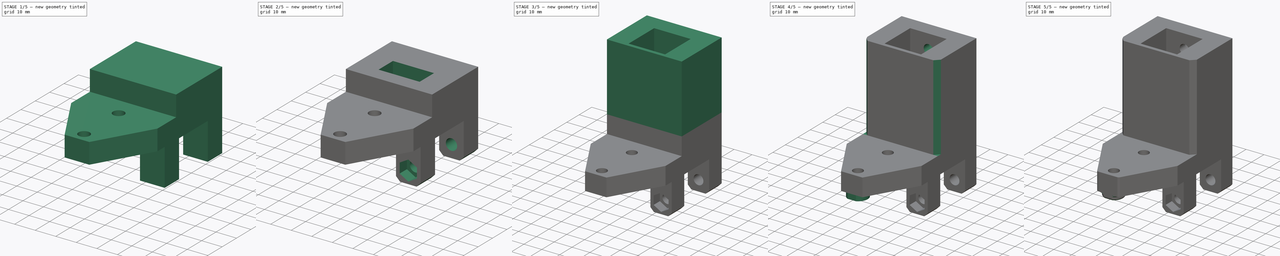
[diagram: build sequence overview — one tinted view per stage of 5, left to right]
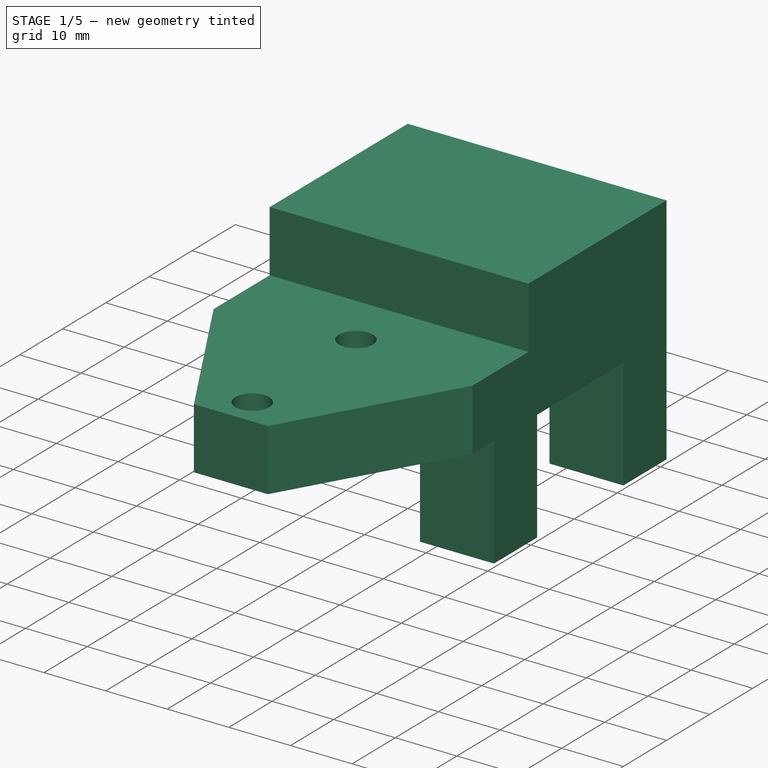
[diagram: stage 1 of 5 — iso view after this stage's code; geometry added in this stage tinted green]
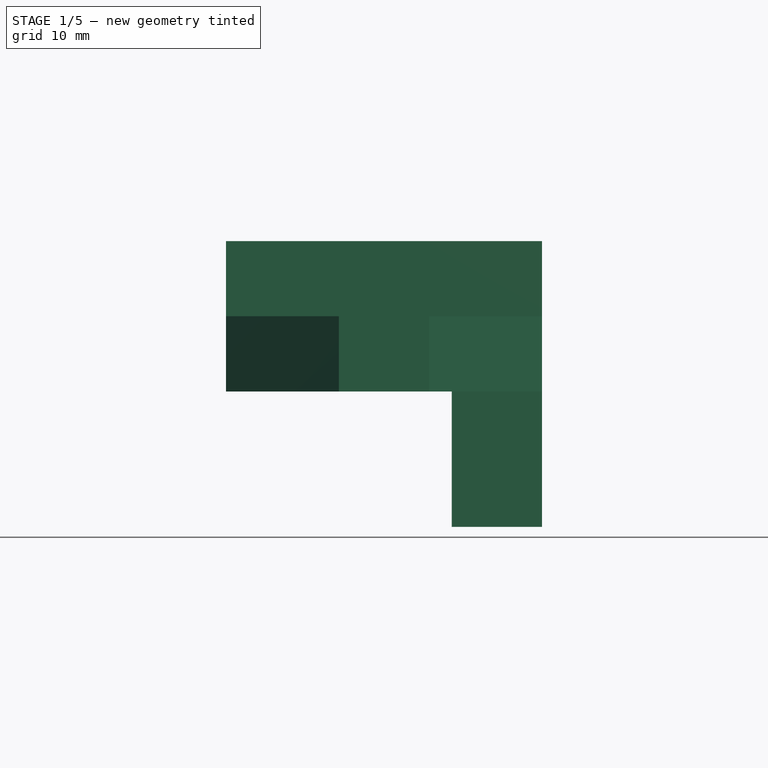
[diagram: stage 1 of 5 — front view after this stage's code; geometry added in this stage tinted green]
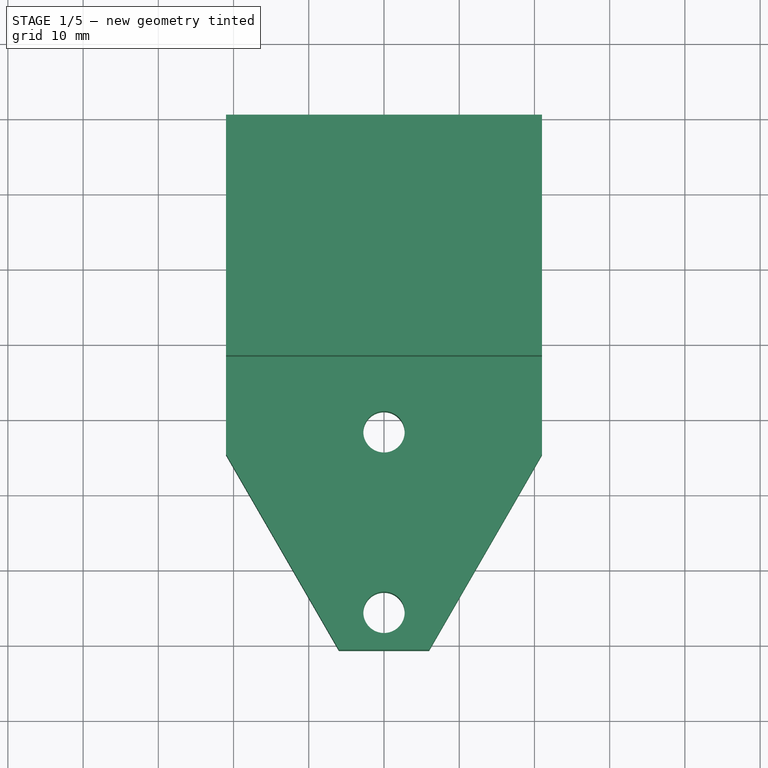
[diagram: stage 1 of 5 — top view after this stage's code; geometry added in this stage tinted green]
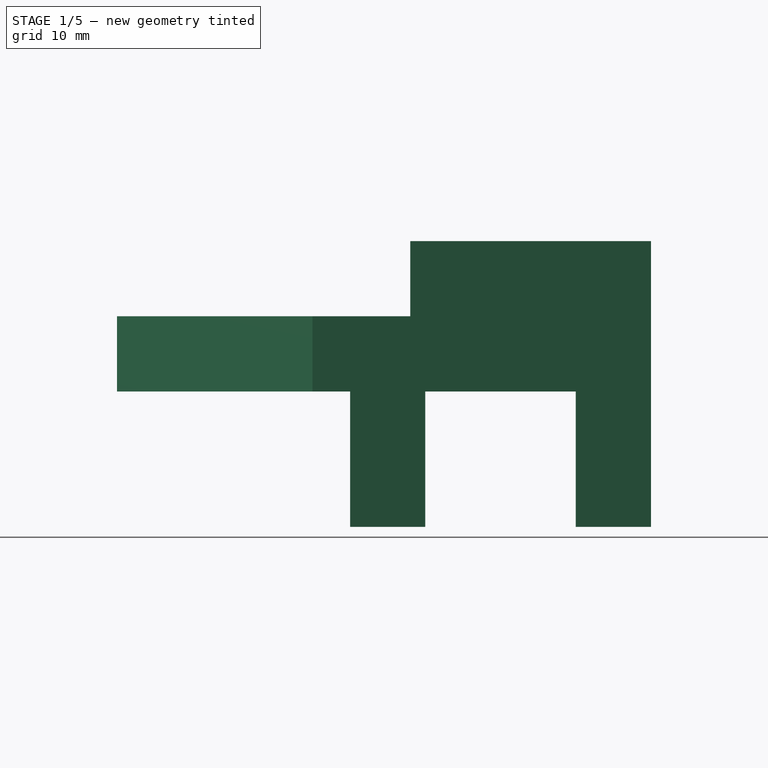
[diagram: stage 1 of 5 — right view after this stage's code; geometry added in this stage tinted green]
FCSTD DOCUMENT  (FreeCAD 0.19R24276 (Git))
Label: x-idler-mount
License: All rights reserved
LicenseURL: http://en.wikipedia.org/wiki/All_rights_reserved
objects: Sketcher::SketchObject×10, PartDesign::Pad×5, PartDesign::Pocket×4, PartDesign::Fillet×4, PartDesign::Plane×3, PartDesign::Chamfer×3, PartDesign::Hole×1, PartDesign::Body×1
note: 48 computed .brp shape members not serialized (recipe doc carries the construction recipe); baked Part::Feature solids carry a one-line shape summary decoded from their .brp

FEATURE [Sketcher::SketchObject] Sketch  label="Base"
  FullyConstrained = true
  MapMode = 5
  Support = -> [XY_Plane]
  sketch-geometry (8):
    g0: LineSegment StartX=-21 StartY=40 StartZ=0 EndX=21 EndY=40 EndZ=0
    g1: LineSegment StartX=21 StartY=40 StartZ=0 EndX=21 EndY=-5 EndZ=0
    g2: LineSegment StartX=-21 StartY=-5 StartZ=0 EndX=-21 EndY=40 EndZ=0
    g3: LineSegment StartX=-21 StartY=-5 StartZ=0 EndX=-6 EndY=-30.9808 EndZ=0
    g4: LineSegment StartX=6 StartY=-30.9808 StartZ=0 EndX=21 EndY=-5 EndZ=0
    g5: Circle CenterX=0 CenterY=-2 CenterZ=0 NormalX=0 NormalY=0 NormalZ=1 AngleXU=0 Radius=2.75
    g6: Circle CenterX=0 CenterY=-26 CenterZ=0 NormalX=0 NormalY=0 NormalZ=1 AngleXU=0 Radius=2.75
    g7: LineSegment StartX=-6 StartY=-30.9808 StartZ=0 EndX=6 EndY=-30.9808 EndZ=0
  constraints (22):
    c: Coincident(g0,g1)
    c: Coincident(g2,g0)
    c: Vertical(g1)
    c: Vertical(g2)
    c: DistanceX(g2,g1) = 42
    c: DistanceY(g2,g2) = 45
    c: Coincident(g3,g2)
    c: Coincident(g4,g1)
    c: PointOnObject(g5,g-2)
    c: PointOnObject(g6,g-2)
    c: Diameter(g5) = 5.5
    c: DistanceY(g6,g5) = 24
    c: DistanceY(g5,g-1) = 2
    c: Symmetric(g7,g7,g-2)
    c: Coincident(g7,g3)
    c: Coincident(g7,g4)
    c: Equal(g2,g1)
    c: DistanceY(g-1,g0) = 40
    c: Symmetric(g0,g0,g-2)
    c: DistanceX(g7,g7) = 12
    c: Angle(g3,g2) = 2.61799
    c: Equal(g6,g5)
FEATURE [PartDesign::Pad] Pad
  AllowMultiFace = false
  Direction = (0,0,1)
  Length = 10
  Length2 = 100
  Profile = -> Sketch
  Type = 0
FEATURE [Sketcher::SketchObject] Sketch001
  FullyConstrained = true
  MapMode = 5
  Support = -> [XY_Plane]
  sketch-geometry (9):
    g0: LineSegment StartX=9 StartY=0 StartZ=0 EndX=21 EndY=0 EndZ=0
    g1: LineSegment StartX=21 StartY=0 StartZ=0 EndX=21 EndY=10 EndZ=0
    g2: LineSegment StartX=21 StartY=10 StartZ=0 EndX=9 EndY=10 EndZ=0
    g3: LineSegment StartX=9 StartY=10 StartZ=0 EndX=9 EndY=0 EndZ=0
    g4: LineSegment StartX=9 StartY=30 StartZ=0 EndX=21 EndY=30 EndZ=0
    g5: LineSegment StartX=21 StartY=30 StartZ=0 EndX=21 EndY=40 EndZ=0
    g6: LineSegment StartX=21 StartY=40 StartZ=0 EndX=9 EndY=40 EndZ=0
    g7: LineSegment StartX=9 StartY=40 StartZ=0 EndX=9 EndY=30 EndZ=0
    g8: LineSegment StartX=15 StartY=0 StartZ=0 EndX=15 EndY=40 EndZ=0
  constraints (26):
    c: Coincident(g0,g1)
    c: Coincident(g1,g2)
    c: Coincident(g2,g3)
    c: Coincident(g3,g0)
    c: Horizontal(g0)
    c: Horizontal(g2)
    c: Vertical(g1)
    c: Vertical(g3)
    c: PointOnObject(g0,g-1)
    c: DistanceY(g1,g1) = 10
    c: DistanceX(g2,g2) = 12
    c: Coincident(g4,g5)
    c: Coincident(g5,g6)
    c: Coincident(g6,g7)
    c: Coincident(g7,g4)
    c: Horizontal(g6)
    c: Vertical(g5)
    c: Vertical(g7)
    c: DistanceX(g6,g6) = 12
    c: DistanceY(g-1,g6) = 40
    c: DistanceY(g5,g5) = 10
    c: PointOnObject(g8,g-1)
    c: DistanceY(g8,g8) = 40
    c: DistanceX(g-1,g8) = 15
    c: Symmetric(g0,g0,g8)
    c: Symmetric(g4,g4,g8)
FEATURE [Sketcher::SketchObject] Sketch002  label="BeltCutOut"
  FullyConstrained = true
  MapMode = 5
  Support = -> [XY_Plane]
  sketch-geometry (4):
    g0: LineSegment StartX=-10 StartY=15 StartZ=0 EndX=10 EndY=15 EndZ=0
    g1: LineSegment StartX=10 StartY=15 StartZ=0 EndX=10 EndY=25 EndZ=0
    g2: LineSegment StartX=10 StartY=25 StartZ=0 EndX=-10 EndY=25 EndZ=0
    g3: LineSegment StartX=-10 StartY=25 StartZ=0 EndX=-10 EndY=15 EndZ=0
  constraints (11):
    c: Coincident(g0,g1)
    c: Coincident(g1,g2)
    c: Coincident(g2,g3)
    c: Coincident(g3,g0)
    c: Horizontal(g2)
    c: Vertical(g1)
    c: Vertical(g3)
    c: DistanceX(g0,g0) = 20
    c: DistanceY(g1,g1) = 10
    c: Symmetric(g0,g0,g-2)
    c: DistanceY(g-1,g0) = 15
FEATURE [Sketcher::SketchObject] Sketch005  label="ArmCapturedNut"
  FullyConstrained = true
  MapMode = 5
  Placement = pos=(0,0,0) rot=(1,0,0;1.5708rad)
  Support = -> [XZ_Plane]
  sketch-geometry (7):
    g0: LineSegment StartX=19.2 StartY=-14.4249 StartZ=0 EndX=19.2 EndY=-9.57513 EndZ=0
    g1: LineSegment StartX=19.2 StartY=-9.57513 StartZ=0 EndX=15 EndY=-7.15026 EndZ=0
    g2: LineSegment StartX=15 StartY=-7.15026 StartZ=0 EndX=10.8 EndY=-9.57513 EndZ=0
    g3: LineSegment StartX=10.8 StartY=-9.57513 StartZ=0 EndX=10.8 EndY=-14.4249 EndZ=0
    g4: LineSegment StartX=10.8 StartY=-14.4249 StartZ=0 EndX=15 EndY=-16.8497 EndZ=0
    g5: LineSegment StartX=15 StartY=-16.8497 StartZ=0 EndX=19.2 EndY=-14.4249 EndZ=0
    g6: Circle CenterX=15 CenterY=-12 CenterZ=0 NormalX=0 NormalY=0 NormalZ=1 AngleXU=0 Radius=4.84974
  constraints (17):
    c: Coincident(g0,g1)
    c: Coincident(g1,g2)
    c: Coincident(g2,g3)
    c: Coincident(g3,g4)
    c: Coincident(g4,g5)
    c: Coincident(g5,g0)
    c: Equal(g0, g1-g5) x5
    c: PointOnObject(g0,g6)
    c: PointOnObject(g1,g6)
    c: PointOnObject(g2,g6)
    c: PointOnObject(g3,g6)
    c: PointOnObject(g4,g6)
    c: PointOnObject(g5,g6)
    c: DistanceY(g6,g-1) = 12
    c: Vertical(g3)
    c: DistanceX(g2,g0) = 8.4
    c: DistanceX(g-1,g6) = 15
FEATURE [Sketcher::SketchObject] Sketch006
  FullyConstrained = true
  MapMode = 5
  Support = -> [XY_Plane]
  sketch-geometry (1):
    g0: Circle CenterX=-15 CenterY=20 CenterZ=0 NormalX=0 NormalY=0 NormalZ=1 AngleXU=0 Radius=2.5
  constraints (3):
    c: DistanceX(g0,g-1) = 15
    c: Diameter(g0) = 5
    c: DistanceY(g-1,g0) = 20
FEATURE [Sketcher::SketchObject] Sketch007  label="railcutout"
  AttachmentOffset = pos=(0,0,20) rot=(0,0,1;0rad)
  FullyConstrained = true
  MapMode = 5
  Placement = pos=(0,0,20) rot=(0,0,1;0rad)
  Support = -> [XY_Plane]
  sketch-geometry (8):
    g0: LineSegment StartX=-10.25 StartY=10 StartZ=0 EndX=-10.25 EndY=30.5 EndZ=0
    g1: LineSegment StartX=-10.25 StartY=30.5 StartZ=0 EndX=10.25 EndY=30.5 EndZ=0
    g2: LineSegment StartX=10.25 StartY=30.5 StartZ=0 EndX=10.25 EndY=10 EndZ=0
    g3: LineSegment StartX=21 StartY=8 StartZ=0 EndX=21 EndY=40 EndZ=0
    g4: LineSegment StartX=21 StartY=40 StartZ=0 EndX=-21 EndY=40 EndZ=0
    g5: LineSegment StartX=-21 StartY=40 StartZ=0 EndX=-21 EndY=8 EndZ=0
    g6: LineSegment StartX=-21 StartY=8 StartZ=0 EndX=21 EndY=8 EndZ=0
    g7: LineSegment StartX=-10.25 StartY=10 StartZ=0 EndX=10.25 EndY=10 EndZ=0
  constraints (22):
    c: Vertical(g0)
    c: Coincident(g0,g1)
    c: Coincident(g1,g2)
    c: Vertical(g2)
    c: Vertical(g3)
    c: Coincident(g3,g4)
    c: Coincident(g4,g5)
    c: Vertical(g5)
    c: Horizontal(g6)
    c: Coincident(g7,g0)
    c: Coincident(g7,g2)
    c: DistanceY(g2,g2) = 20.5
    c: Horizontal(g7)
    c: DistanceX(g4,g4) = 42
    c: Symmetric(g4,g3,g-2)
    c: DistanceY(g1,g3) = 9.5
    c: DistanceY(g6,g3) = 32
    c: DistanceY(g-1,g3) = 40
    c: Symmetric(g0,g1,g-2)
    c: DistanceX(g1,g1) = 20.5
    c: Coincident(g6,g5)
    c: Coincident(g3,g6)
FEATURE [Sketcher::SketchObject] Sketch008
  AttachmentOffset = pos=(0,0,-40) rot=(0,0,1;0rad)
  FullyConstrained = true
  MapMode = 5
  Placement = pos=(0,40,8.9e-15) rot=(1,0,0;1.5708rad)
  Support = -> [XZ_Plane]
  sketch-geometry (2):
    g0: Circle CenterX=0 CenterY=50 CenterZ=0 NormalX=0 NormalY=0 NormalZ=1 AngleXU=0 Radius=2.75
    g1: Circle CenterX=0 CenterY=28 CenterZ=0 NormalX=0 NormalY=0 NormalZ=1 AngleXU=0 Radius=2.75
  constraints (6):
    c: PointOnObject(g0,g-2)
    c: PointOnObject(g1,g-2)
    c: Equal(g0,g1)
    c: Diameter(g0) = 5.5
    c: DistanceY(g1,g0) = 22
    c: DistanceY(g-1,g1) = 28
FEATURE [Sketcher::SketchObject] Sketch009
  AttachmentOffset = pos=(0,0,10) rot=(0,0,1;0rad)
  FullyConstrained = true
  MapMode = 5
  Placement = pos=(0,0,10) rot=(0,0,1;0rad)
  Support = -> [XY_Plane]
  sketch-geometry (4):
    g0: LineSegment StartX=-21 StartY=40 StartZ=0 EndX=21 EndY=40 EndZ=0
    g1: LineSegment StartX=21 StartY=40 StartZ=0 EndX=21 EndY=8 EndZ=0
    g2: LineSegment StartX=21 StartY=8 StartZ=0 EndX=-21 EndY=8 EndZ=0
    g3: LineSegment StartX=-21 StartY=8 StartZ=0 EndX=-21 EndY=40 EndZ=0
  constraints (11):
    c: Coincident(g0,g1)
    c: Coincident(g1,g2)
    c: Coincident(g2,g3)
    c: Coincident(g3,g0)
    c: Horizontal(g0)
    c: Vertical(g1)
    c: Vertical(g3)
    c: Symmetric(g2,g1,g-2)
    c: DistanceX(g2,g2) = 42
    c: DistanceY(g1,g1) = 32
    c: DistanceY(g-1,g0) = 40
FEATURE [PartDesign::Pad] Pad003
  BaseFeature = -> Pad
  Direction = (0,0,1)
  Length = 10
  Length2 = 100
  Profile = -> Sketch009
  Type = 0
FEATURE [PartDesign::Pad] Pad001
  AllowMultiFace = false
  BaseFeature = -> Pad003
  Direction = (0,0,1)
  Length = 18
  Length2 = 100
  Profile = -> Sketch001
  Reversed = true
  Type = 0
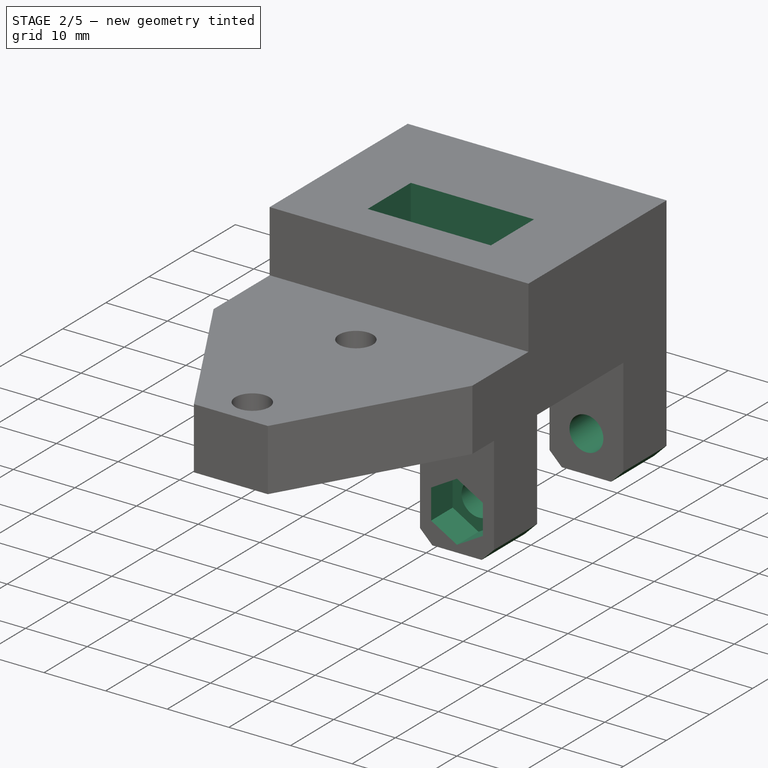
[diagram: stage 2 of 5 — iso view after this stage's code; geometry added in this stage tinted green]
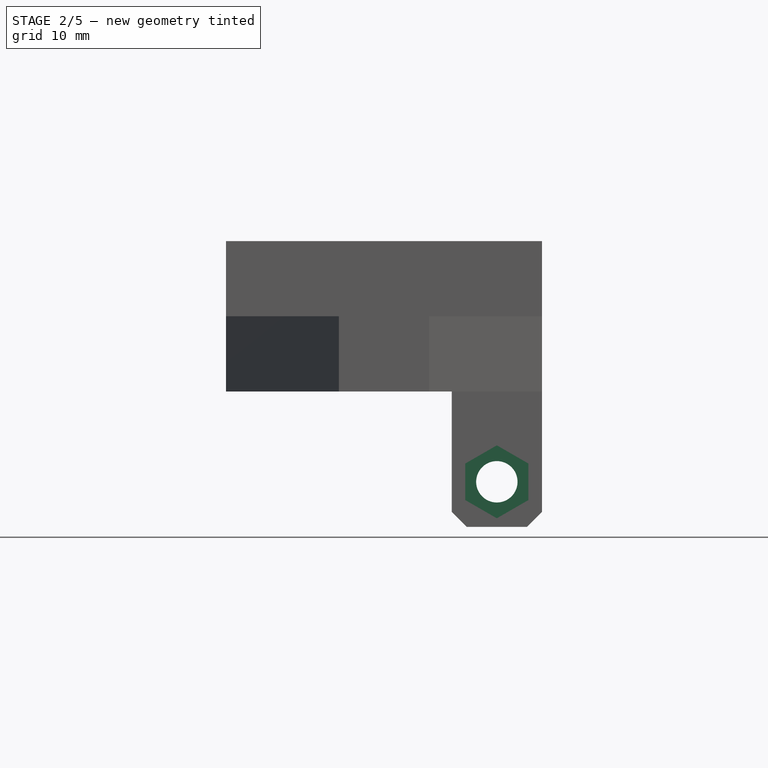
[diagram: stage 2 of 5 — front view after this stage's code; geometry added in this stage tinted green]
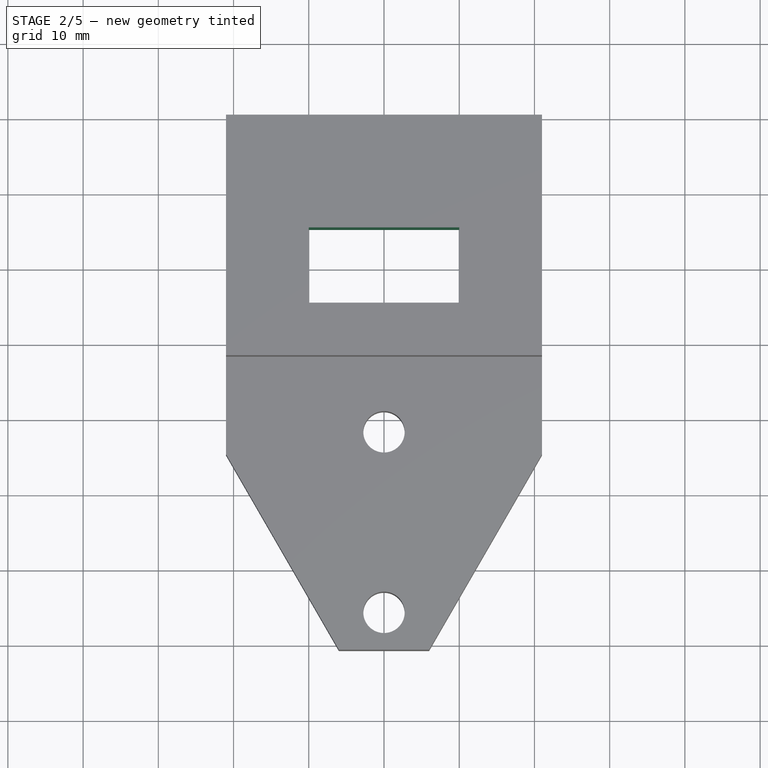
[diagram: stage 2 of 5 — top view after this stage's code; geometry added in this stage tinted green]
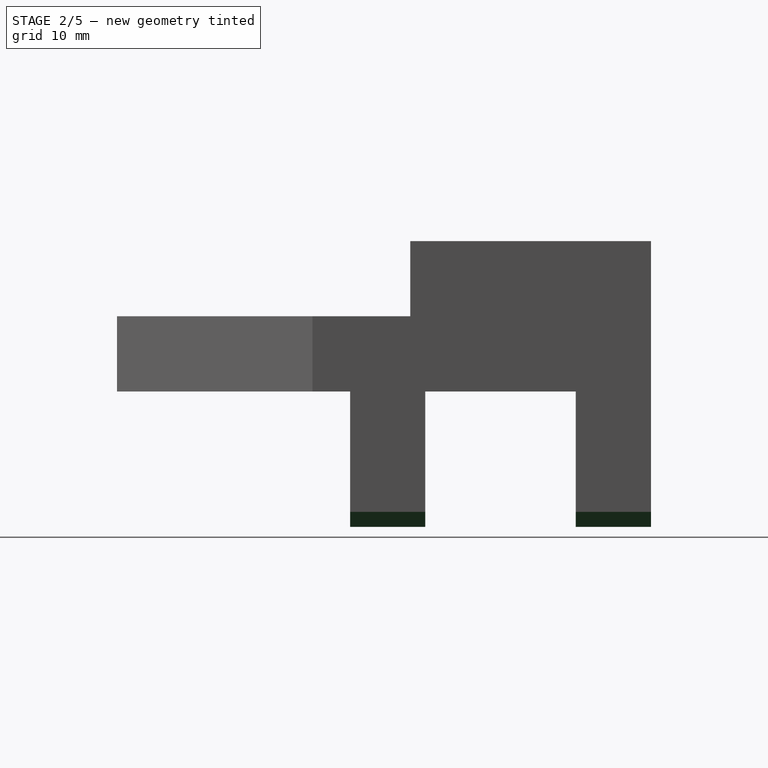
[diagram: stage 2 of 5 — right view after this stage's code; geometry added in this stage tinted green]
FEATURE [PartDesign::Pocket] Pocket
  AllowMultiFace = false
  BaseFeature = -> Pad001
  Length = 18
  Length2 = 20
  Profile = -> Sketch002
  Type = 4
FEATURE [PartDesign::Plane] DatumPlane
  Length = 62.8841
  MapMode = 5
  Placement = pos=(0,40,0) rot=(0,0.707107,0.707107;3.14159rad)
  ResizeMode = 0
  Support = -> [Pocket]
  Width = 95.8841
FEATURE [Sketcher::SketchObject] Sketch003  label="ArmBoltHole"
  FullyConstrained = true
  MapMode = 5
  Placement = pos=(0,40,0) rot=(0,0.707107,0.707107;3.14159rad)
  Support = -> [Pocket]
  sketch-geometry (1):
    g0: Circle CenterX=-15 CenterY=-12 CenterZ=0 NormalX=0 NormalY=0 NormalZ=1 AngleXU=0 Radius=2.75
  constraints (3):
    c: Diameter(g0) = 5.5
    c: DistanceY(g0,g-1) = 12
    c: DistanceX(g0,g-1) = 15
FEATURE [PartDesign::Pocket] Pocket001
  AllowMultiFace = false
  BaseFeature = -> Pocket
  Length = 40
  Length2 = 100
  Profile = -> Sketch003
  Type = 0
FEATURE [PartDesign::Pocket] Pocket003
  AllowMultiFace = false
  BaseFeature = -> Pocket001
  Length = 5
  Length2 = 100
  Profile = -> Sketch005
  Type = 0
FEATURE [PartDesign::Chamfer] Chamfer
  Angle = 45
  Base = -> Pocket003 [Edge49,Edge52,Edge70,Edge56]
  BaseFeature = -> Pocket003
  ChamferType = 0
  FlipDirection = false
  Size = 2
  Size2 = 1
  SupportTransform = false
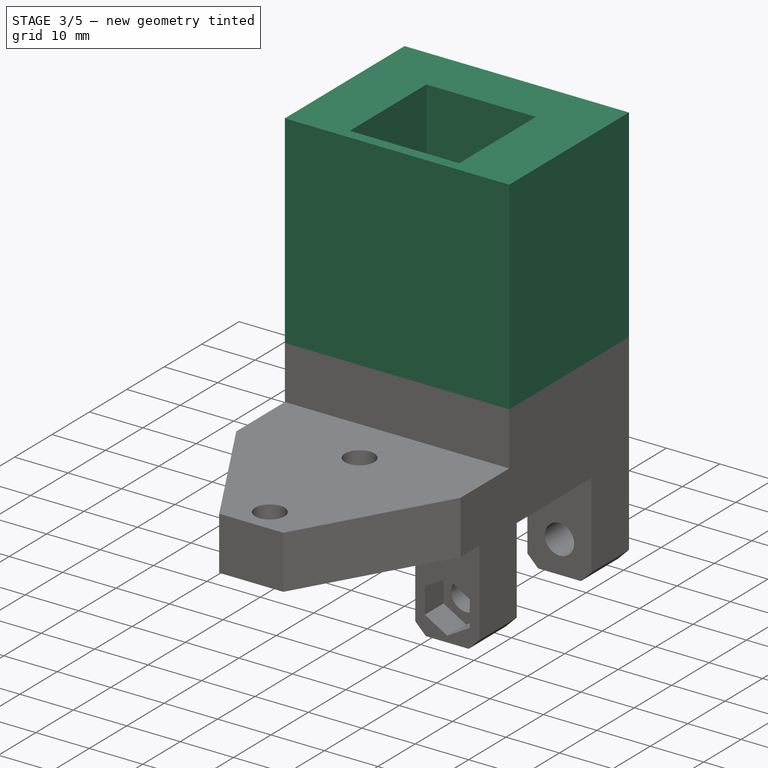
[diagram: stage 3 of 5 — iso view after this stage's code; geometry added in this stage tinted green]
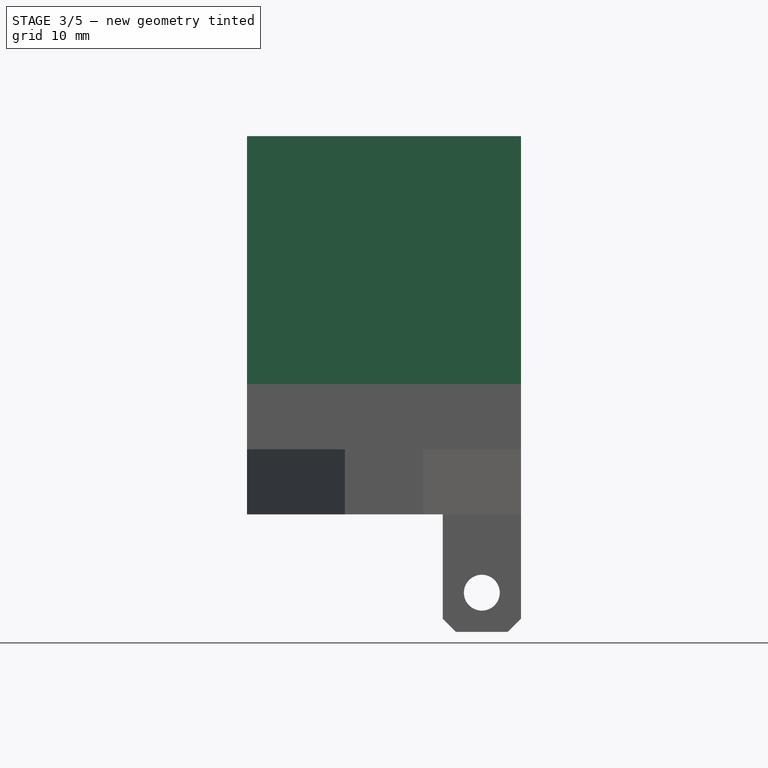
[diagram: stage 3 of 5 — front view after this stage's code; geometry added in this stage tinted green]
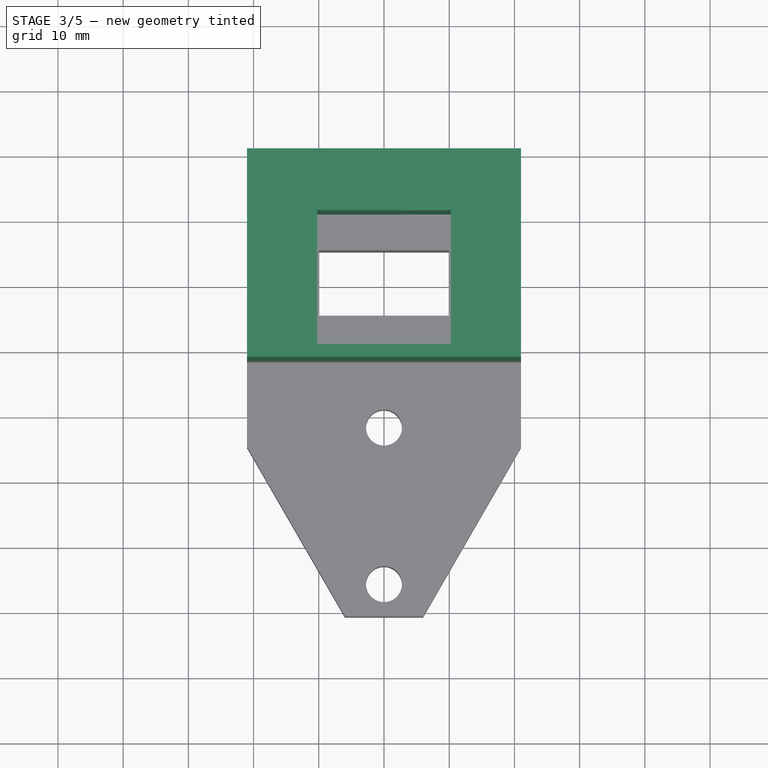
[diagram: stage 3 of 5 — top view after this stage's code; geometry added in this stage tinted green]
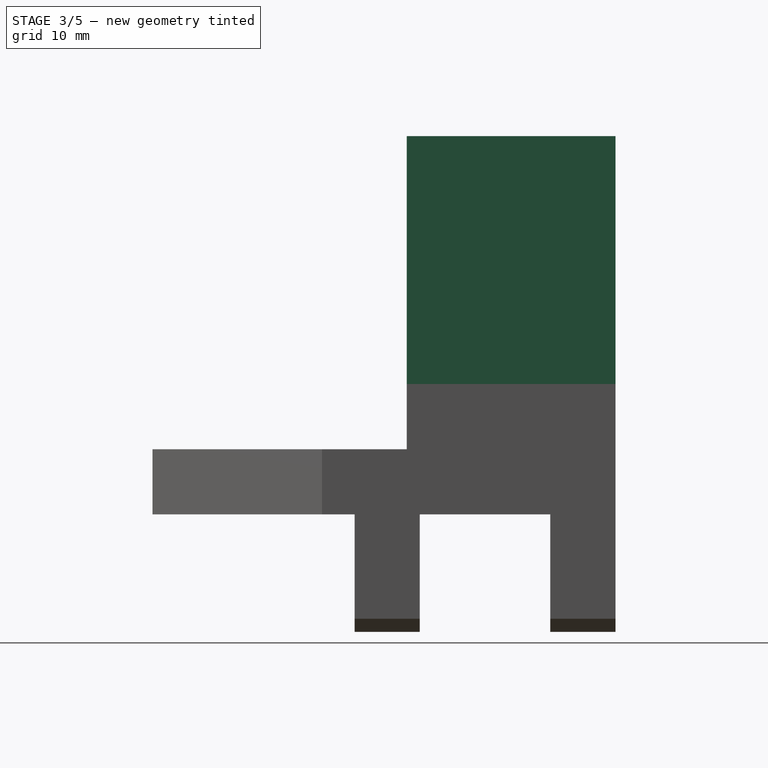
[diagram: stage 3 of 5 — right view after this stage's code; geometry added in this stage tinted green]
FEATURE [PartDesign::Pocket] Pocket004  label="pkt_domeheadnut"
  AllowMultiFace = false
  BaseFeature = -> Chamfer
  Length = 1.5
  Length2 = 100
  Profile = -> Sketch006
  Reversed = true
  Type = 0
FEATURE [PartDesign::Fillet] Fillet  label="fillet_domeheatnut"
  Base = -> Pocket004 [Edge94]
  BaseFeature = -> Pocket004
  Radius = 1
  SupportTransform = false
FEATURE [PartDesign::Pad] Pad002  label="pad_20x20rail"
  BaseFeature = -> Fillet
  Direction = (0,0,1)
  Length = 38
  Length2 = 100
  Profile = -> Sketch007
  Type = 0
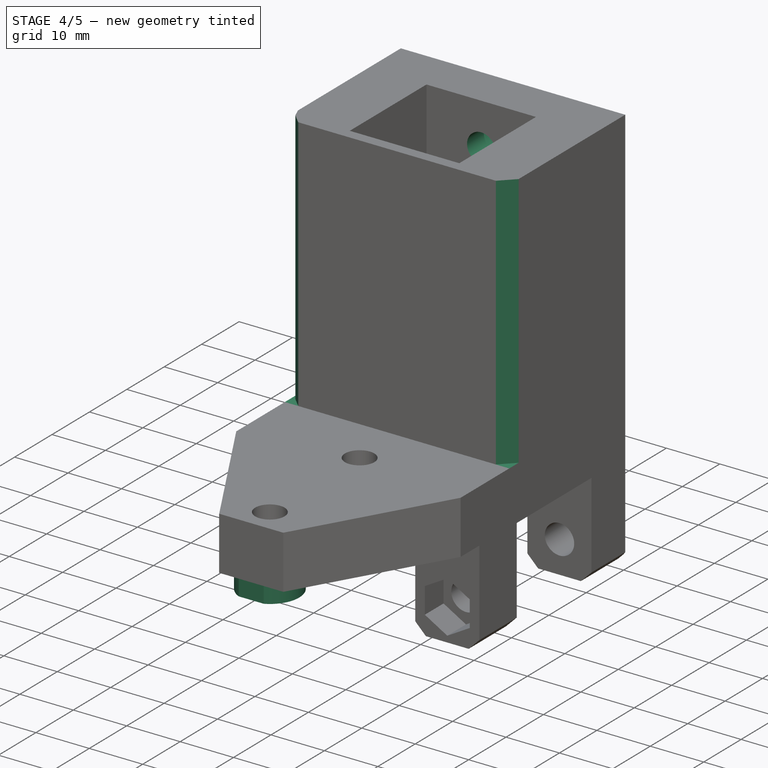
[diagram: stage 4 of 5 — iso view after this stage's code; geometry added in this stage tinted green]
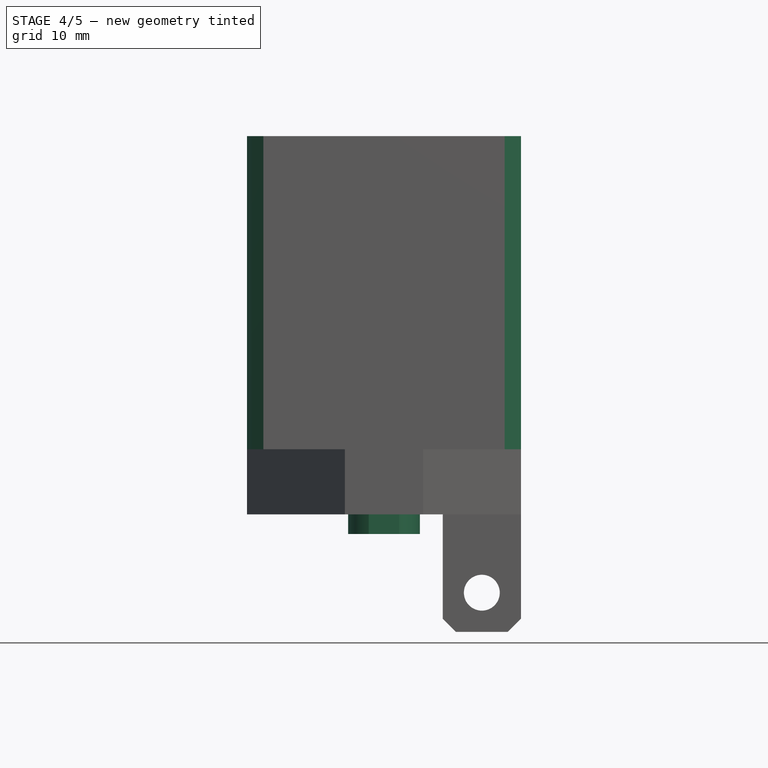
[diagram: stage 4 of 5 — front view after this stage's code; geometry added in this stage tinted green]
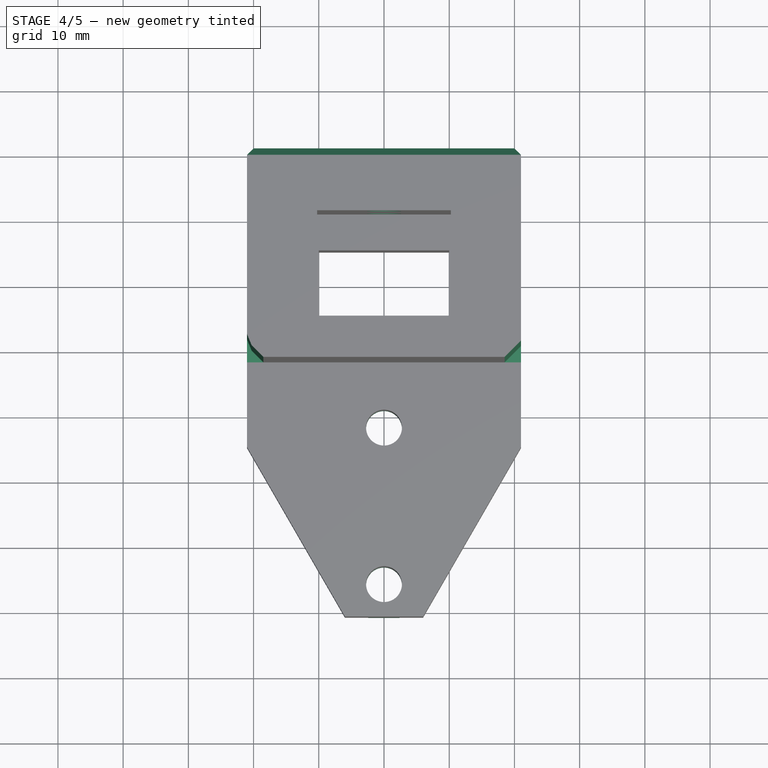
[diagram: stage 4 of 5 — top view after this stage's code; geometry added in this stage tinted green]
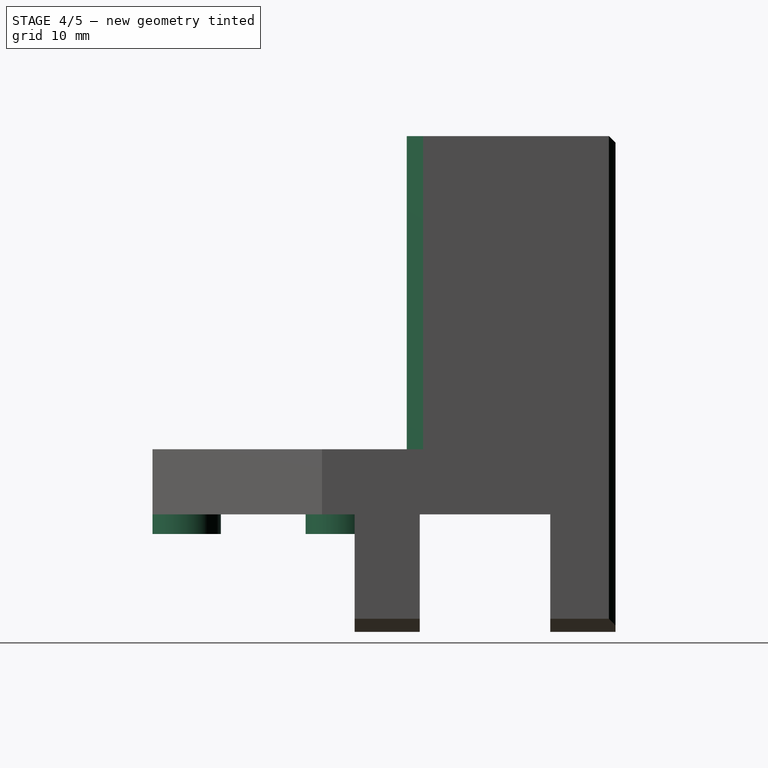
[diagram: stage 4 of 5 — right view after this stage's code; geometry added in this stage tinted green]
FEATURE [PartDesign::Chamfer] Chamfer005
  Angle = 45
  Base = -> Pad002 [Edge123,Edge119]
  BaseFeature = -> Pad002
  ChamferType = 0
  FlipDirection = false
  Size = 2.5
  Size2 = 1
  SupportTransform = false
FEATURE [PartDesign::Chamfer] Chamfer006
  Angle = 45
  Base = -> Chamfer005 [Edge49,Edge52,Edge55,Edge75]
  BaseFeature = -> Chamfer005
  ChamferType = 0
  FlipDirection = false
  Size = 1
  Size2 = 1
  SupportTransform = false
FEATURE [PartDesign::Plane] DatumPlane001  label="PrintPlane"
  Length = 86.3319
  MapMode = 5
  Placement = pos=(21,0,0) rot=(0.57735,0.57735,0.57735;2.0944rad)
  ResizeMode = 0
  Support = -> [Chamfer006]
  Width = 98.3511
FEATURE [PartDesign::Hole] Hole
  BaseFeature = -> Chamfer006
  Depth = 15
  DepthType = 0
  Diameter = 5.3
  DrillForDepth = false
  DrillPoint = 0
  DrillPointAngle = 118
  HoleCutCountersinkAngle = 90
  HoleCutCustomValues = false
  HoleCutDepth = 5
  HoleCutDiameter = 10
  HoleCutType = 1
  ModelActualThread = false
  Profile = -> Sketch008
  Reversed = true
  Tapered = false
  TaperedAngle = 90
  ThreadAngle = 0
  ThreadClass = 0
  ThreadCutOffInner = 0
  ThreadCutOffOuter = 0
  ThreadDirection = 0
  ThreadFit = 1
  ThreadPitch = 0
  ThreadSize = 13
  ThreadType = 1
  Threaded = false
FEATURE [PartDesign::Plane] DatumPlane002
  Length = 61.9148
  MapMode = 5
  Placement = pos=(0,0,0) rot=(1,0,0;3.14159rad)
  ResizeMode = 0
  Support = -> [Hole]
  Width = 82.8955
FEATURE [Sketcher::SketchObject] Sketch010
  ExternalGeometry = -> [Hole]
  FullyConstrained = true
  MapMode = 5
  Placement = pos=(0,0,0) rot=(1,0,0;3.14159rad)
  Support = -> [DatumPlane002]
  sketch-geometry (5):
    g0: ArcOfCircle CenterX=0 CenterY=26 CenterZ=0 NormalX=0 NormalY=0 NormalZ=1 AngleXU=0 Radius=5.5 StartAngle=2.00882 EndAngle=7.41596
    g1: Circle CenterX=0 CenterY=2 CenterZ=0 NormalX=0 NormalY=0 NormalZ=1 AngleXU=0 Radius=5.5
    g2: LineSegment StartX=-2.33281 StartY=30.9808 StartZ=0 EndX=2.33281 EndY=30.9808 EndZ=0
    g3: Circle CenterX=0 CenterY=26 CenterZ=0 NormalX=0 NormalY=0 NormalZ=1 AngleXU=0 Radius=2.75
    g4: Circle CenterX=0 CenterY=2 CenterZ=0 NormalX=0 NormalY=0 NormalZ=1 AngleXU=0 Radius=2.75
  constraints (12):
    c: Coincident(g0,g-3)
    c: Coincident(g1,g-4)
    c: Equal(g0,g1)
    c: Coincident(g2,g0)
    c: Coincident(g2,g0)
    c: PointOnObject(g0,g-5)
    c: PointOnObject(g0,g-5)
    c: Coincident(g3,g0)
    c: Equal(g3,g-3)
    c: Radius(g0) = 5.5
    c: Coincident(g4,g1)
    c: Equal(g4,g-4)
FEATURE [PartDesign::Pad] Pad004
  BaseFeature = -> Hole
  Direction = (1,1,1)
  Length = 3
  Length2 = 100
  Profile = -> Sketch010
  Type = 0
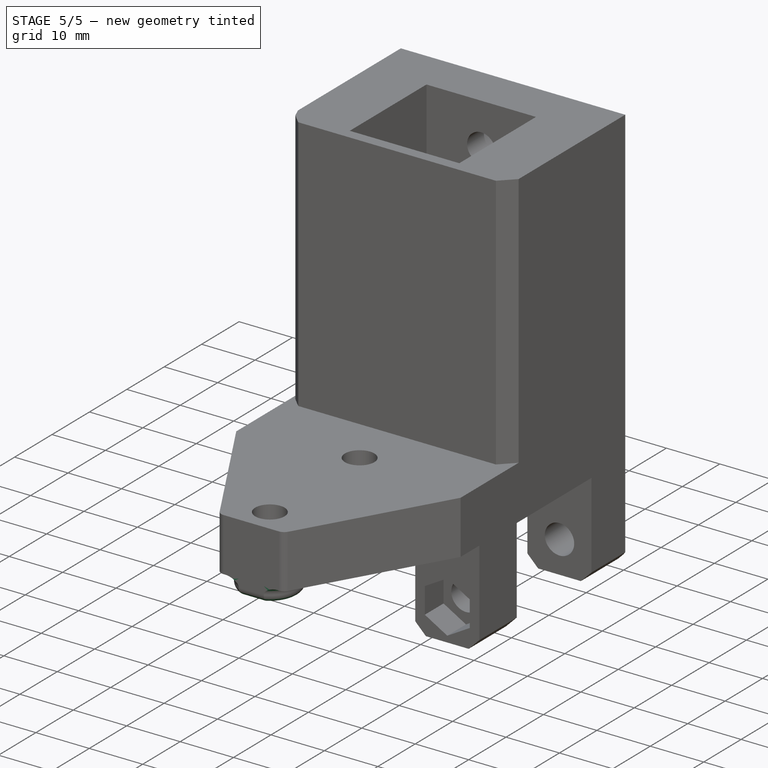
[diagram: stage 5 of 5 — iso view after this stage's code; geometry added in this stage tinted green]
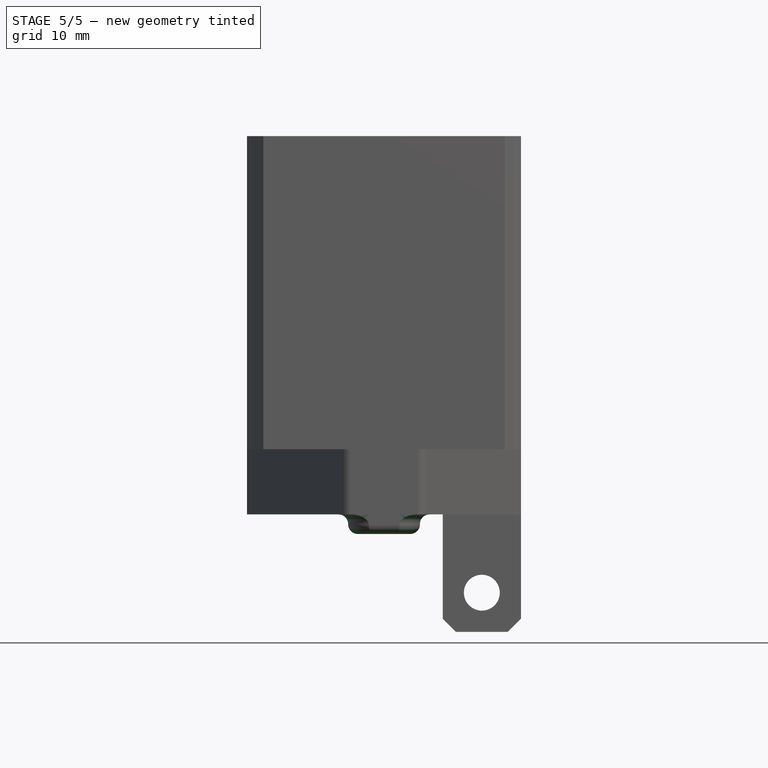
[diagram: stage 5 of 5 — front view after this stage's code; geometry added in this stage tinted green]
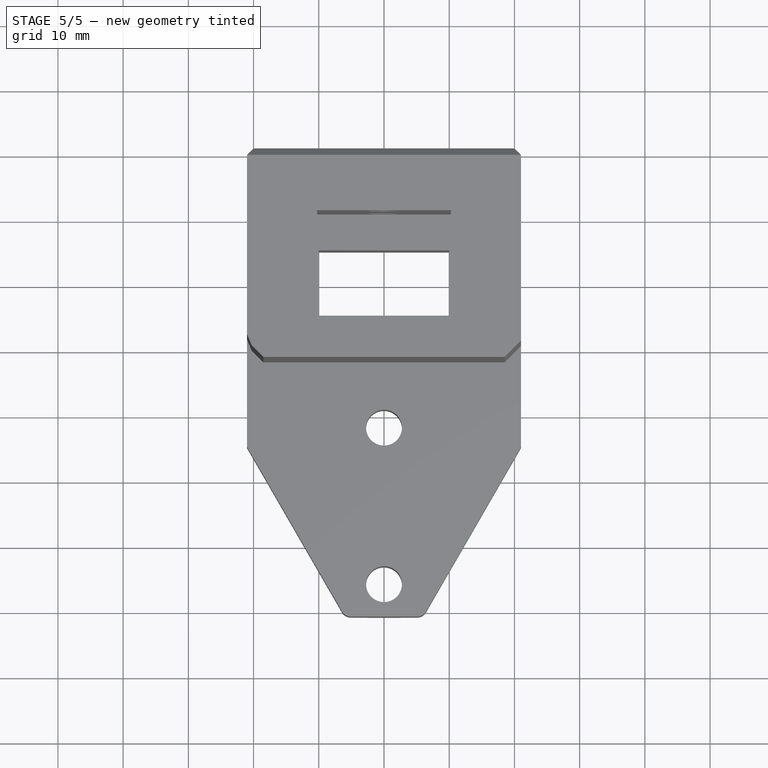
[diagram: stage 5 of 5 — top view after this stage's code; geometry added in this stage tinted green]
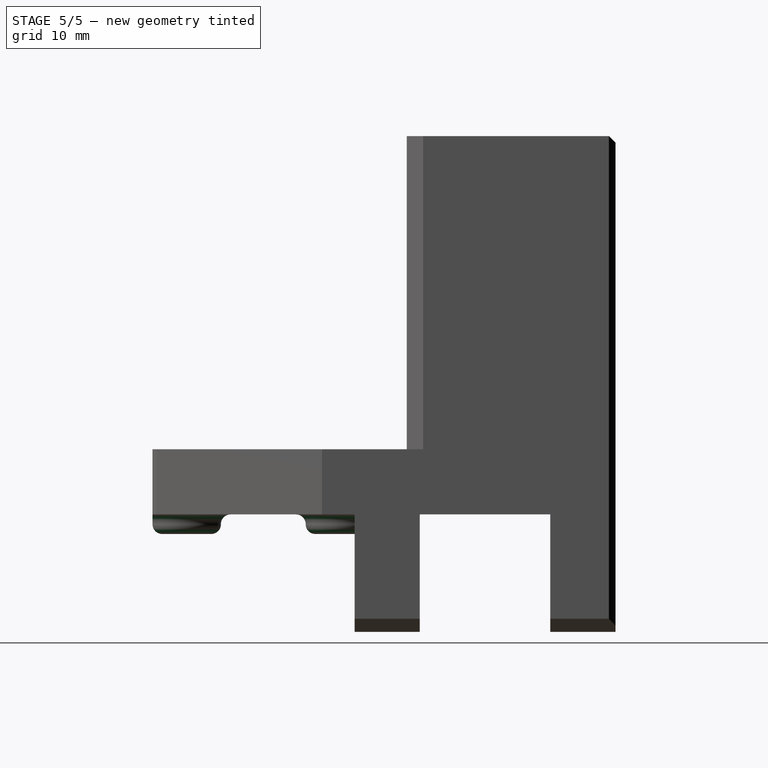
[diagram: stage 5 of 5 — right view after this stage's code; geometry added in this stage tinted green]
FEATURE [PartDesign::Fillet] Fillet001
  Base = -> Pad004 [Edge63,Edge55]
  BaseFeature = -> Pad004
  Radius = 1.49
  SupportTransform = false
FEATURE [PartDesign::Fillet] Fillet002
  Base = -> Fillet001 [Edge98,Edge158,Edge30]
  BaseFeature = -> Fillet001
  Radius = 1.48
  SupportTransform = false
FEATURE [PartDesign::Fillet] Fillet003
  Base = -> Fillet002 [Edge18,Edge16]
  BaseFeature = -> Fillet002
  Radius = 1.5
  SupportTransform = false
FEATURE [PartDesign::Body] Body
  Group = -> [Sketch,Pad,Sketch001,Pad003,Pad001,Sketch002,Pocket,DatumPlane,Sketch003,Pocket001,Sketch005,Pocket003,Chamfer,Sketch006,Pocket004,Fillet,Pad002,Chamfer005,Chamfer006,DatumPlane001,Sketch007,Sketch008,Hole,Sketch009,DatumPlane002,Sketch010,Pad004,Fillet001,Fillet002,Fillet003]
  Origin = -> Origin
  Tip = -> Fillet003
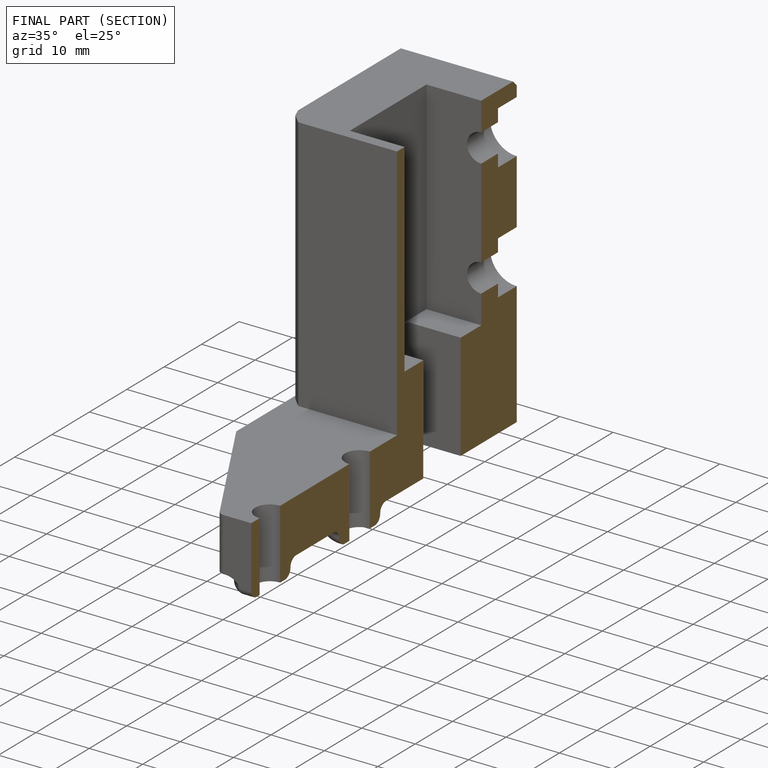
[diagram: finished part — half-section view (interior)]
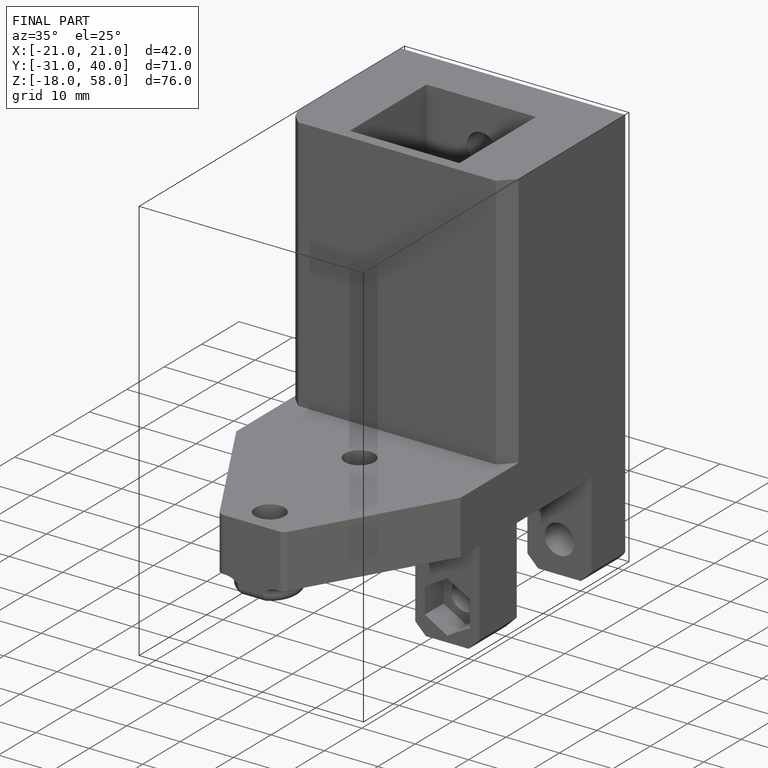
[diagram: finished part — iso view with bounding-box wireframe]
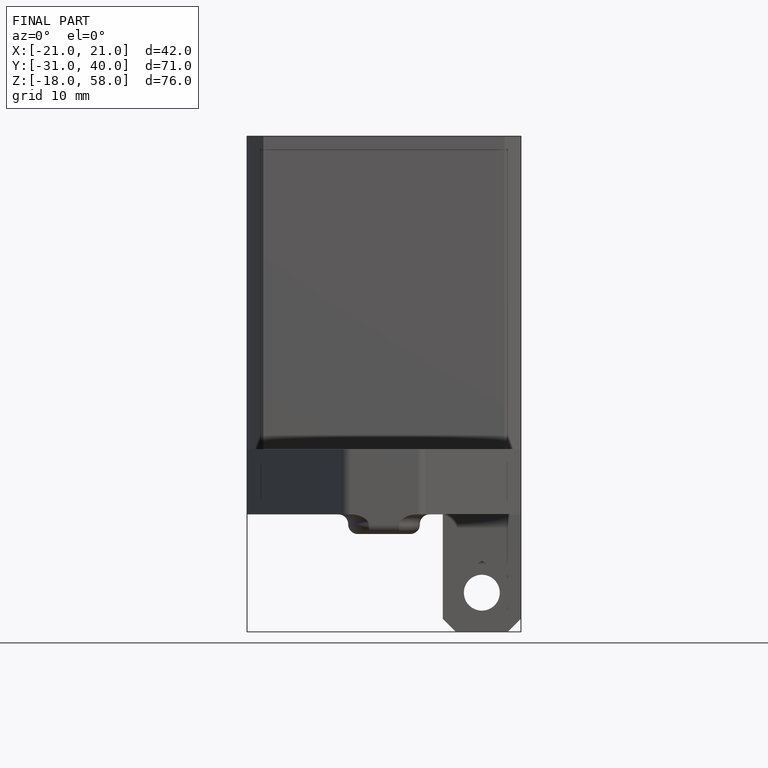
[diagram: finished part — front view with bounding-box wireframe]
